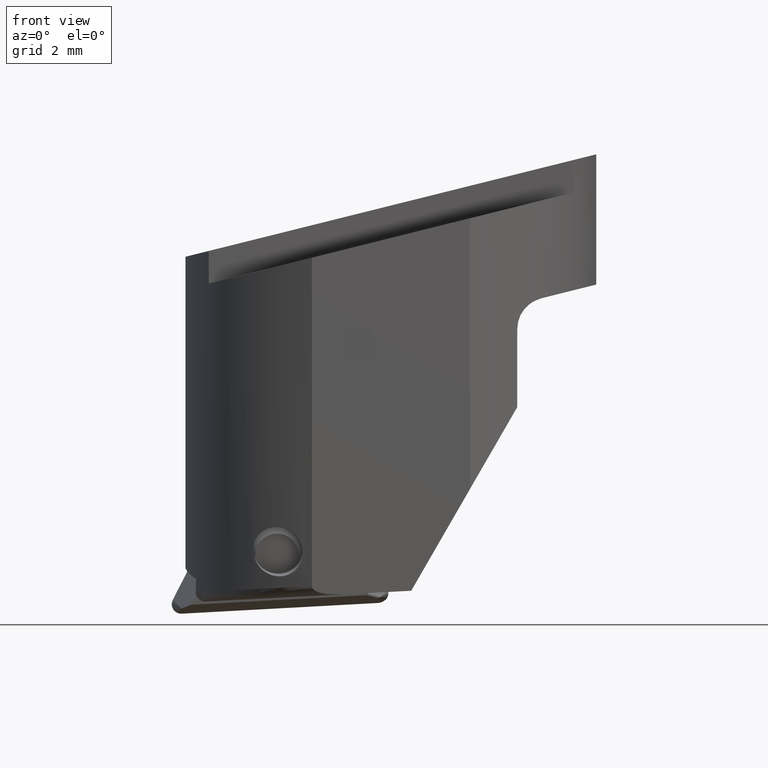
[diagram: clean part render]
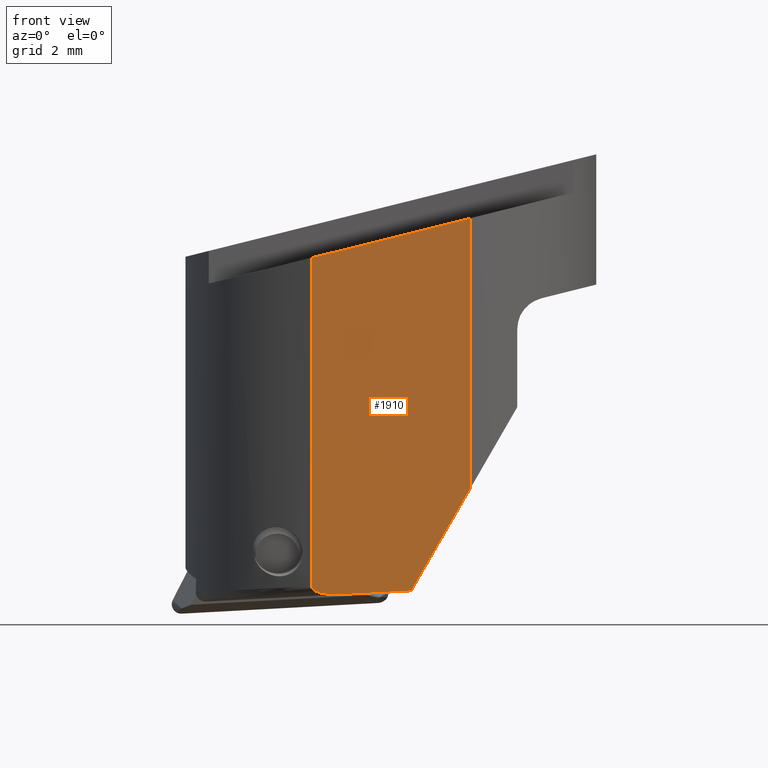
[diagram: same view with one face highlighted and labeled with its STEP entity id]
A machine part, front view. The second image highlights one B-rep face of the part: STEP entity #1910.
In plain terms, the highlighted planar face has unit normal (0, 1, 0).
Its self-contained STEP definition (entity closure, byte-faithful):
#900=VERTEX_POINT('NONE',#2463);
#954=VERTEX_POINT('NONE',#2529);
#1248=VERTEX_POINT('NONE',#2851);
#1406=EDGE_CURVE('NONE',#954,#1414,#3024,.F.);
#1414=VERTEX_POINT('NONE',#3033);
#1740=EDGE_CURVE('NONE',#954,#1248,#3398,.T.);
#1910=ADVANCED_FACE('NONE',(#3583),#3584,.F.);
#1914=VERTEX_POINT('NONE',#3588);
#1992=EDGE_CURVE('NONE',#900,#2052,#3671,.T.);
#2052=VERTEX_POINT('NONE',#3739);
#2166=EDGE_CURVE('NONE',#1414,#1914,#3860,.F.);
#2232=EDGE_CURVE('NONE',#900,#1914,#3935,.T.);
#2294=EDGE_CURVE('NONE',#2052,#1248,#4007,.T.);
#2463=CARTESIAN_POINT('',(0.643854047821123,-6.0,-13.8130153067904));
#2529=CARTESIAN_POINT('',(-2.5,-6.0,-3.27456565493845));
#2851=CARTESIAN_POINT('',(2.5,-6.0,-2.02792564072259));
#3024=LINE('',#5699,#5700);
#3033=CARTESIAN_POINT('',(-2.5,-6.0,-13.6713189605716));
#3398=LINE('',#6243,#6244);
#3583=FACE_OUTER_BOUND('',#6482,.T.);
#3584=PLANE('',#6483);
#3588=CARTESIAN_POINT('',(-1.54634914830846,-6.0,-13.9277989924782));
#3671=LINE('',#6605,#6606);
#3739=CARTESIAN_POINT('',(2.5,-6.0,-10.5980762113533));
#3860=B_SPLINE_CURVE_WITH_KNOTS('',3,(#6913,#6914,#6915,#6916,#6917,#6918,#6919,#6920,#6921,#6922,#6923,#6924,#6925,#6926,#6927,#6928,#6929,#6930,#6931,#6932,#6933,#6934),.UNSPECIFIED.,.F.,.F.,(4,3,3,3,3,3,3,4),(0.0,0.5,0.75,0.875,0.9375,0.971685031677149,0.995393047922041,1.0),.UNSPECIFIED.);
#3935=LINE('',#7028,#7029);
#4007=LINE('',#7126,#7127);
#5699=CARTESIAN_POINT('',(-2.5,-6.0,-2.74293317993028E-016));
#5700=VECTOR('',#7999,1.0);
#6243=CARTESIAN_POINT('',(-13.832027219807,-6.0,-6.09995736981741));
#6244=VECTOR('',#8467,1.0);
#6482=EDGE_LOOP('',(#8662,#8663,#8664,#8665,#8666,#8667));
#6483=AXIS2_PLACEMENT_3D('',#8668,#8669,#8670);
#6605=CARTESIAN_POINT('',(-5.84001628094428,-6.0,-25.0434081459004));
#6606=VECTOR('',#8752,1.0);
#6913=CARTESIAN_POINT('',(-1.54634914830846,-6.0,-13.9277989924782));
#6914=CARTESIAN_POINT('',(-1.72168075537424,-6.0,-13.9369876505124));
#6915=CARTESIAN_POINT('',(-1.89808438289037,-6.0,-13.9393192280229));
#6916=CARTESIAN_POINT('',(-2.07218343419467,-6.0,-13.9140156945399));
#6917=CARTESIAN_POINT('',(-2.15923295984683,-6.0,-13.9013639277984));
#6918=CARTESIAN_POINT('',(-2.24575452147914,-6.0,-13.8832632630712));
#6919=CARTESIAN_POINT('',(-2.32706078414975,-6.0,-13.8497687018792));
#6920=CARTESIAN_POINT('',(-2.36771391548505,-6.0,-13.8330214212832));
#6921=CARTESIAN_POINT('',(-2.40746132952455,-6.0,-13.8125061886044));
#6922=CARTESIAN_POINT('',(-2.44114461807965,-6.0,-13.784354670539));
#6923=CARTESIAN_POINT('',(-2.4579862623572,-6.0,-13.7702789115064));
#6924=CARTESIAN_POINT('',(-2.47364295602732,-6.0,-13.7540667029378));
#6925=CARTESIAN_POINT('',(-2.48351942049004,-6.0,-13.7343760738174));
#6926=CARTESIAN_POINT('',(-2.4889214564983,-6.0,-13.7236060773337));
#6927=CARTESIAN_POINT('',(-2.49441458184223,-6.0,-13.7128930283042));
#6928=CARTESIAN_POINT('',(-2.49676348367012,-6.0,-13.7009908885271));
#6929=CARTESIAN_POINT('',(-2.49839249496428,-6.0,-13.6927365119961));
#6930=CARTESIAN_POINT('',(-2.50091274924129,-6.0,-13.6852050208986));
#6931=CARTESIAN_POINT('',(-2.50044012513795,-6.0,-13.6764592369746));
#6932=CARTESIAN_POINT('',(-2.50034828461564,-6.0,-13.6747597524202));
#6933=CARTESIAN_POINT('',(-2.49999987526898,-6.0,-13.6729366661317));
#6934=CARTESIAN_POINT('',(-2.5,-6.0,-13.6713189605716));
#7028=CARTESIAN_POINT('',(0.252950602308215,-6.0,-13.8335016882838));
#7029=VECTOR('',#9070,1.0);
#7126=CARTESIAN_POINT('',(2.5,-6.0,-8.86616717566705E-016));
#7127=VECTOR('',#9174,1.0);
#7999=DIRECTION('',(1.22464679914735E-016,-0.0,1.0));
#8467=DIRECTION('',(0.970295726275998,0.0,0.241921895599661));
#8662=ORIENTED_EDGE('',*,*,#1406,.T.);
#8663=ORIENTED_EDGE('',*,*,#2166,.T.);
#8664=ORIENTED_EDGE('',*,*,#2232,.F.);
#8665=ORIENTED_EDGE('',*,*,#1992,.T.);
#8666=ORIENTED_EDGE('',*,*,#2294,.T.);
#8667=ORIENTED_EDGE('',*,*,#1740,.F.);
#8668=CARTESIAN_POINT('',(-9.47954982912627,-6.0,-31.0));
#8669=DIRECTION('',(0.0,1.0,0.0));
#8670=DIRECTION('',(1.0,0.0,-1.22464679914735E-016));
#8752=DIRECTION('',(0.500000000000001,0.0,0.866025403784438));
#9070=DIRECTION('',(-0.998629534754574,0.0,-0.0523359562429364));
#9174=DIRECTION('',(1.22464679914735E-016,-0.0,1.0));